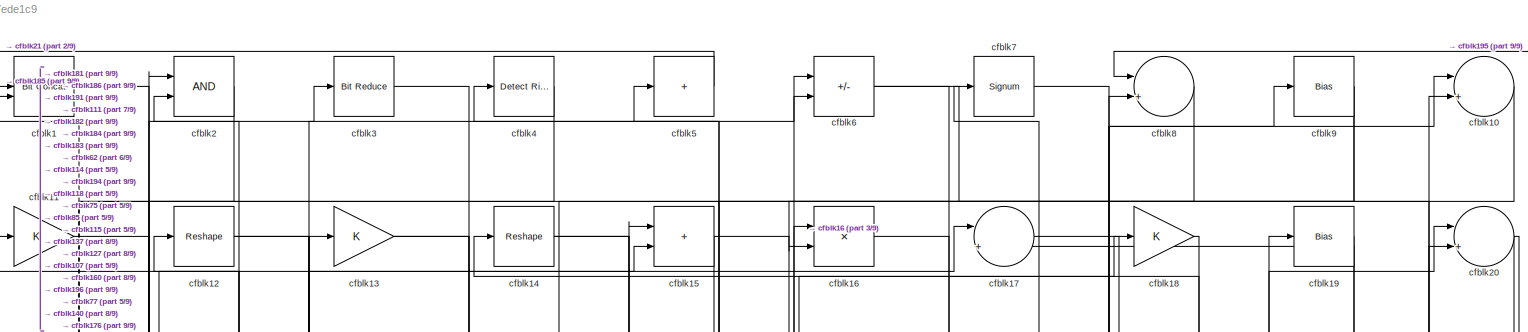
[diagram: root canvas - part 1/9, full width, top band]
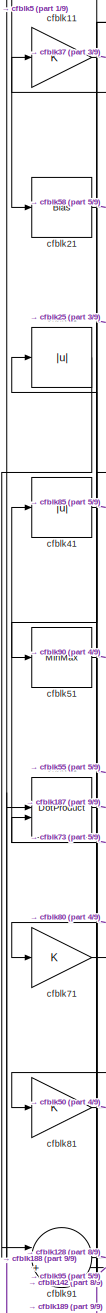
[diagram: root canvas - part 2/9, top left region]
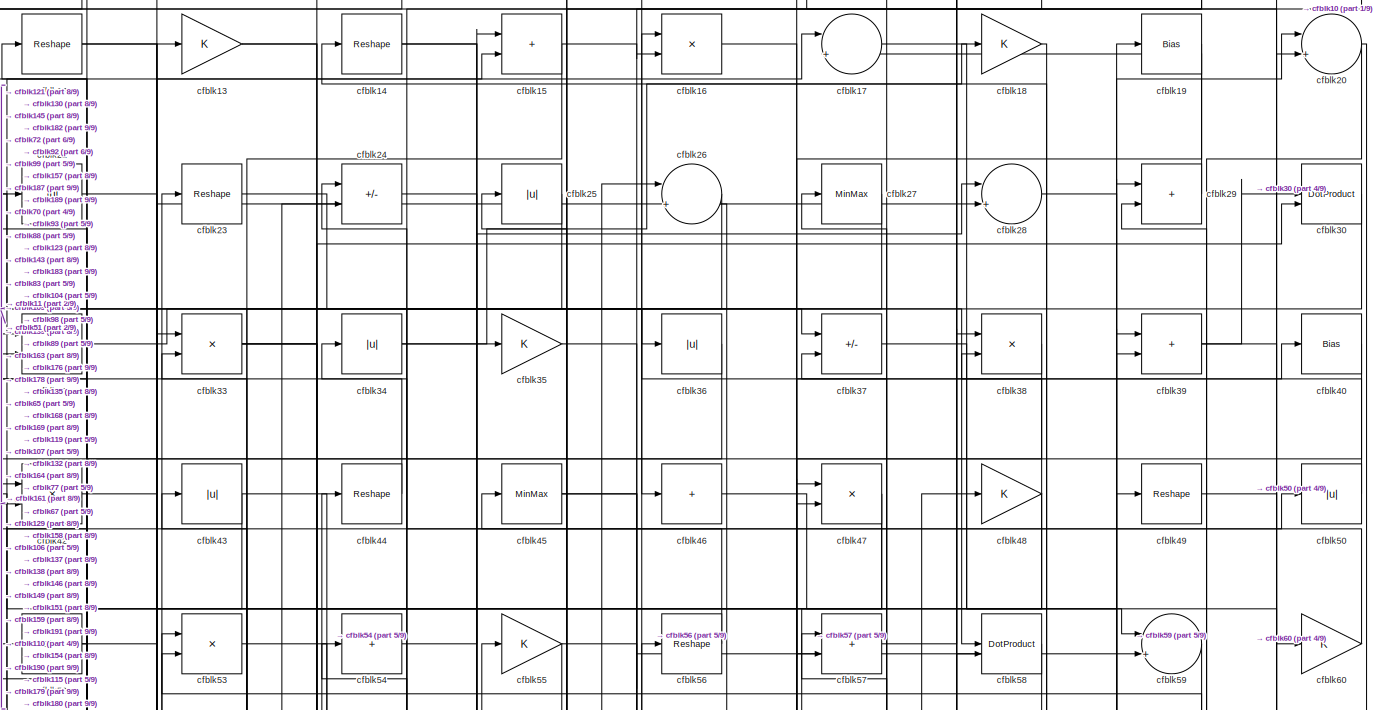
[diagram: root canvas - part 3/9, full width, top band]
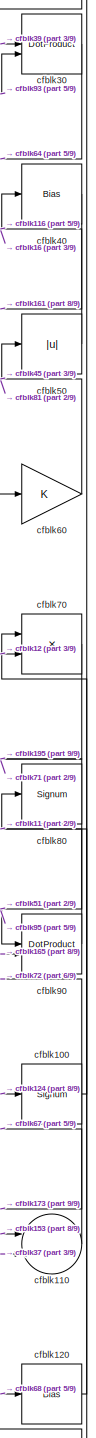
[diagram: root canvas - part 4/9, middle right region]
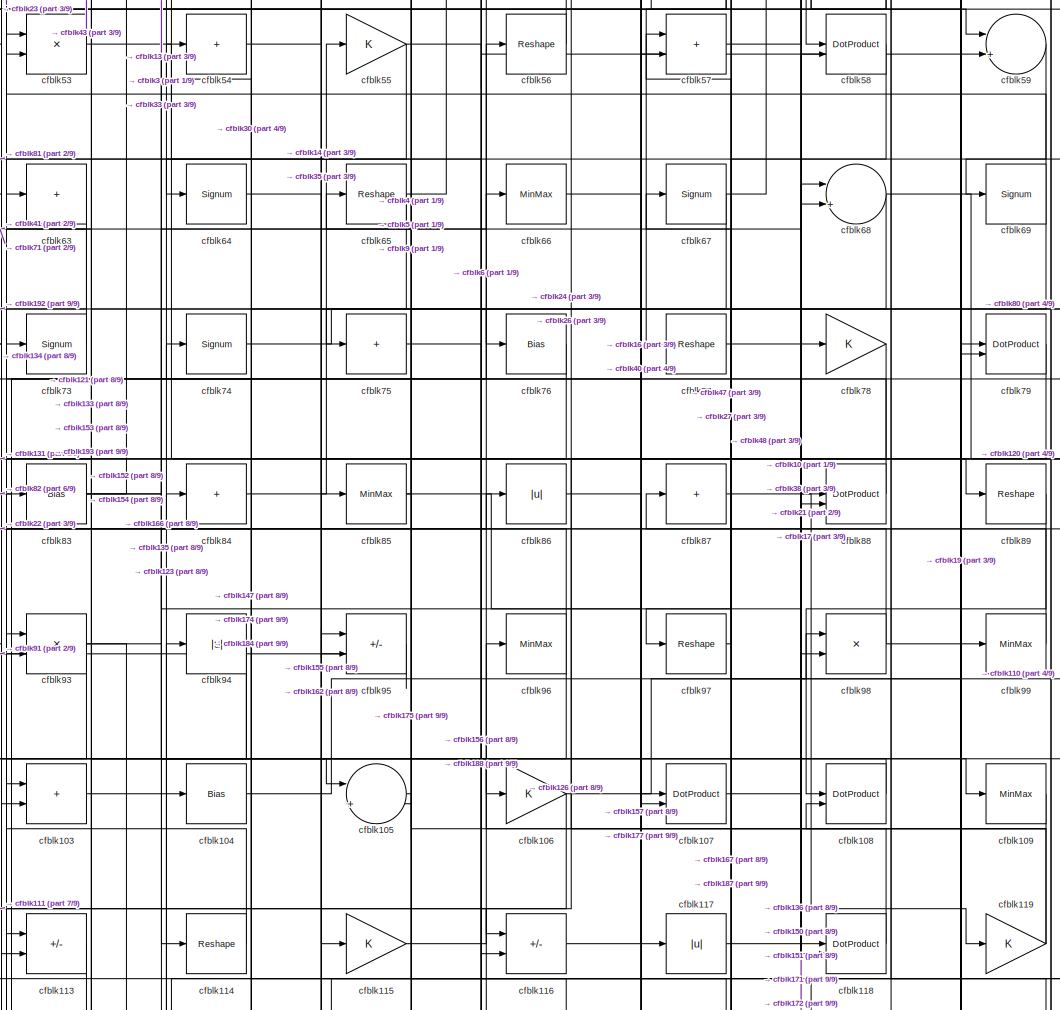
[diagram: root canvas - part 5/9, central region]
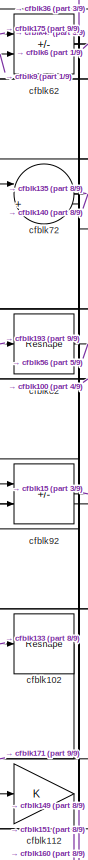
[diagram: root canvas - part 6/9, middle left region]
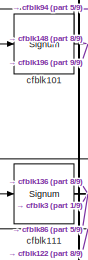
[diagram: root canvas - part 7/9, middle left region]
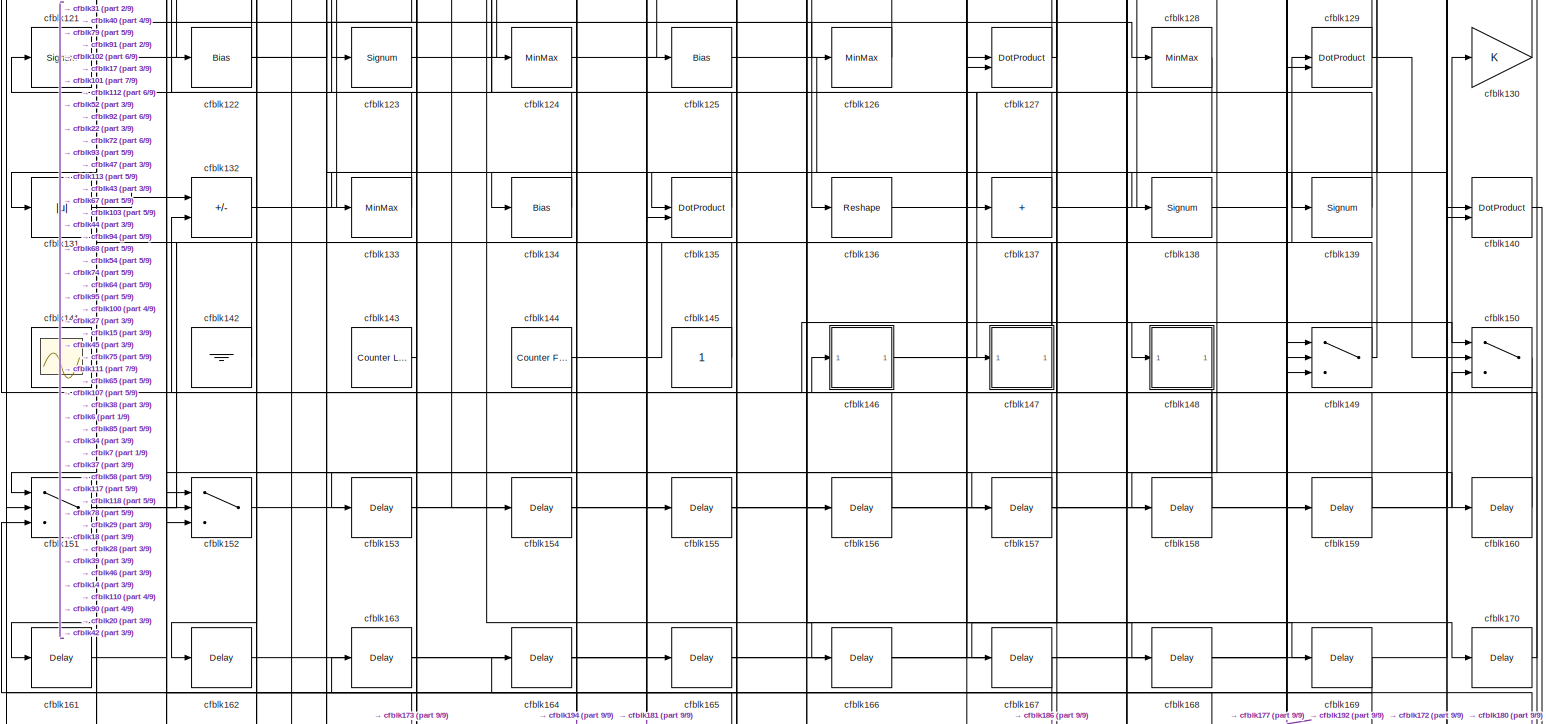
[diagram: root canvas - part 8/9, full width, bottom band]
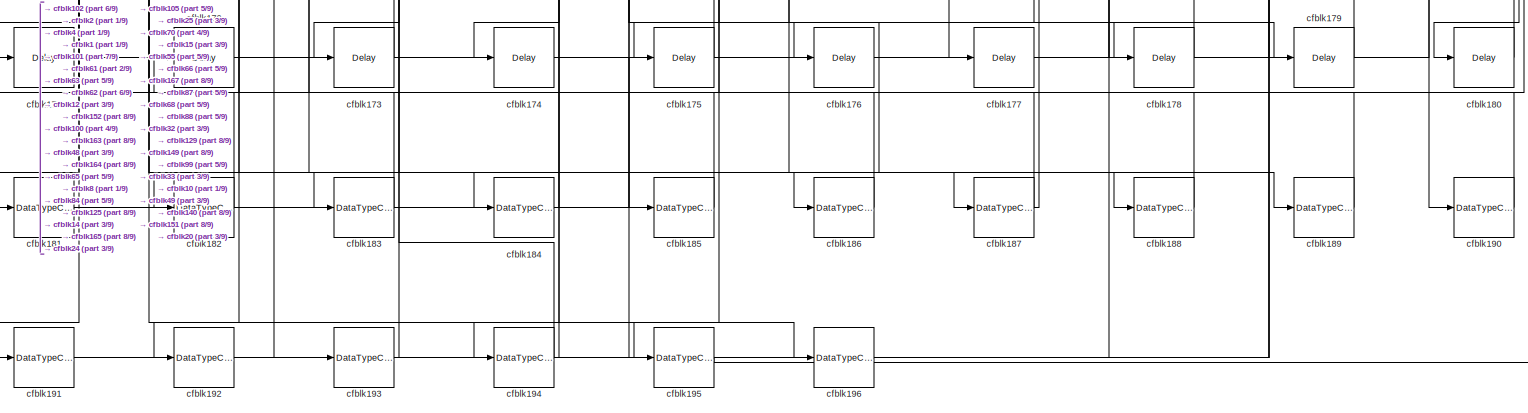
[diagram: root canvas - part 9/9, full width, bottom band]
MODEL slx_2dbc07ede1c9
KIND model
CONFIG AbsTol = auto
CONFIG EnableMultiTasking = off
CONFIG FixedStep = auto
CONFIG MaxStep = auto
CONFIG MinStep = auto
CONFIG RelTol = 1e-3
CONFIG SampleTimeConstraint = Unconstrained
CONFIG SolverName = VariableStepAuto
CONFIG StartTime = 0.0
CONFIG StopTime = 10.0
BLOCK [Reference] cfblk1  REF=hdlsllib/Logic and Bit
Operations/Bit Concat
  SourceBlock = hdlsllib/Logic and Bit\nOperations/Bit Concat
  SourceType = Bit Concat
BLOCK [Sum] cfblk10
  Inputs = |++
BLOCK [Signum] cfblk100
BLOCK [Signum] cfblk101
BLOCK [Reshape] cfblk102
BLOCK [Sum] cfblk103
  IconShape = rectangular
BLOCK [Bias] cfblk104
  Bias = 0.0
  SaturateOnIntegerOverflow = off
BLOCK [Sum] cfblk105
  Inputs = |++
BLOCK [Gain] cfblk106
BLOCK [DotProduct] cfblk107
  OutDataTypeStr = Inherit: Inherit via internal rule
BLOCK [DotProduct] cfblk108
  OutDataTypeStr = Inherit: Inherit via internal rule
BLOCK [MinMax] cfblk109
BLOCK [Gain] cfblk11
BLOCK [Sum] cfblk110
  Inputs = |++
BLOCK [Signum] cfblk111
BLOCK [Gain] cfblk112
BLOCK [Sum] cfblk113
  IconShape = rectangular
  Inputs = +-
BLOCK [Reshape] cfblk114
BLOCK [Gain] cfblk115
BLOCK [Sum] cfblk116
  IconShape = rectangular
  Inputs = +-
BLOCK [Abs] cfblk117
  SaturateOnIntegerOverflow = off
BLOCK [DotProduct] cfblk118
  OutDataTypeStr = Inherit: Inherit via internal rule
BLOCK [Gain] cfblk119
BLOCK [Reshape] cfblk12
BLOCK [Bias] cfblk120
  Bias = 0.0
  SaturateOnIntegerOverflow = off
BLOCK [Signum] cfblk121
BLOCK [Bias] cfblk122
  Bias = 0.0
  SaturateOnIntegerOverflow = off
BLOCK [Signum] cfblk123
BLOCK [MinMax] cfblk124
BLOCK [Bias] cfblk125
  Bias = 0.0
  SaturateOnIntegerOverflow = off
BLOCK [MinMax] cfblk126
BLOCK [DotProduct] cfblk127
  OutDataTypeStr = Inherit: Inherit via internal rule
BLOCK [MinMax] cfblk128
BLOCK [DotProduct] cfblk129
  OutDataTypeStr = Inherit: Inherit via internal rule
BLOCK [Gain] cfblk13
BLOCK [Gain] cfblk130
BLOCK [Abs] cfblk131
  SaturateOnIntegerOverflow = off
BLOCK [Sum] cfblk132
  IconShape = rectangular
  Inputs = +-
BLOCK [MinMax] cfblk133
BLOCK [Bias] cfblk134
  Bias = 0.0
  SaturateOnIntegerOverflow = off
BLOCK [DotProduct] cfblk135
  OutDataTypeStr = Inherit: Inherit via internal rule
BLOCK [Reshape] cfblk136
BLOCK [Sum] cfblk137
  IconShape = rectangular
  Inputs = +
BLOCK [Signum] cfblk138
BLOCK [Signum] cfblk139
BLOCK [Reshape] cfblk14
BLOCK [DotProduct] cfblk140
  OutDataTypeStr = Inherit: Inherit via internal rule
BLOCK [Scope] cfblk141
  Floating = on
  NumInputPorts = 1
  ScopeSpecificationString = Simulink.scopes.TimeScopeBlockCfg('CurrentConfiguration', extmgr.ConfigurationSet(extmgr.Configuration('Core','General UI',true,'FigureColor',[0.156862745098039 0.156862745098039 0.156862745098039]),extmgr.Configuration('Core','Source UI',true),extmgr.Configuration('Sources','WiredSimulink',true,'DataLoggingVariableName','ScopeData1','DataLoggingSaveFormat','StructureWithTime','DataLoggingLimitDat...<+2713ch>
BLOCK [Ground] cfblk142
BLOCK [Reference] cfblk143  REF=hdlsllib/Sources/Counter
Limited
  SourceBlock = hdlsllib/Sources/Counter\nLimited
  SourceType = Counter Limited
BLOCK [Reference] cfblk144  REF=hdlsllib/Sources/Counter
Free-Running
  SourceBlock = hdlsllib/Sources/Counter\nFree-Running
  SourceType = Counter Free-Running
BLOCK [Constant] cfblk145
  SampleTime = -1
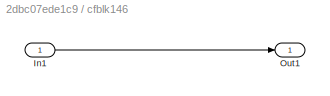
BLOCK [SubSystem] cfblk146
  LibrarySourceBlock = hdlsllib/Ports &\nSubsystems/Subsystem
BLOCK [Inport] cfblk146/In1
BLOCK [Outport] cfblk146/Out1
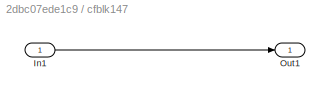
BLOCK [SubSystem] cfblk147
  LibrarySourceBlock = hdlsllib/Ports &\nSubsystems/Subsystem
BLOCK [Inport] cfblk147/In1
BLOCK [Outport] cfblk147/Out1
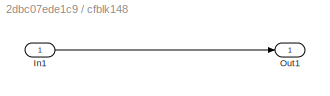
BLOCK [SubSystem] cfblk148
  LibrarySourceBlock = hdlsllib/Ports &\nSubsystems/Subsystem
BLOCK [Inport] cfblk148/In1
BLOCK [Outport] cfblk148/Out1
BLOCK [Switch] cfblk149
  InputSameDT = off
  SaturateOnIntegerOverflow = off
BLOCK [Sum] cfblk15
  IconShape = rectangular
BLOCK [Switch] cfblk150
  InputSameDT = off
  SaturateOnIntegerOverflow = off
BLOCK [Switch] cfblk151
  InputSameDT = off
  SaturateOnIntegerOverflow = off
BLOCK [Switch] cfblk152
  InputSameDT = off
  SaturateOnIntegerOverflow = off
BLOCK [Delay] cfblk153
  InputPortMap = u0
  SampleTime = 1
BLOCK [Delay] cfblk154
  InputPortMap = u0
  SampleTime = 1
BLOCK [Delay] cfblk155
  InputPortMap = u0
  SampleTime = 1
BLOCK [Delay] cfblk156
  InputPortMap = u0
  SampleTime = 1
BLOCK [Delay] cfblk157
  InputPortMap = u0
  SampleTime = 1
BLOCK [Delay] cfblk158
  InputPortMap = u0
  SampleTime = 1
BLOCK [Delay] cfblk159
  InputPortMap = u0
  SampleTime = 1
BLOCK [Product] cfblk16
  Inputs = */
  RndMeth = Zero
  SaturateOnIntegerOverflow = on
BLOCK [Delay] cfblk160
  InputPortMap = u0
  SampleTime = 1
BLOCK [Delay] cfblk161
  InputPortMap = u0
  SampleTime = 1
BLOCK [Delay] cfblk162
  InputPortMap = u0
  SampleTime = 1
BLOCK [Delay] cfblk163
  InputPortMap = u0
  SampleTime = 1
BLOCK [Delay] cfblk164
  InputPortMap = u0
  SampleTime = 1
BLOCK [Delay] cfblk165
  InputPortMap = u0
  SampleTime = 1
BLOCK [Delay] cfblk166
  InputPortMap = u0
  SampleTime = 1
BLOCK [Delay] cfblk167
  InputPortMap = u0
  SampleTime = 1
BLOCK [Delay] cfblk168
  InputPortMap = u0
  SampleTime = 1
BLOCK [Delay] cfblk169
  InputPortMap = u0
  SampleTime = 1
BLOCK [Sum] cfblk17
  Inputs = |++
BLOCK [Delay] cfblk170
  InputPortMap = u0
  SampleTime = 1
BLOCK [Delay] cfblk171
  InputPortMap = u0
  SampleTime = 1
BLOCK [Delay] cfblk172
  InputPortMap = u0
  SampleTime = 1
BLOCK [Delay] cfblk173
  InputPortMap = u0
  SampleTime = 1
BLOCK [Delay] cfblk174
  InputPortMap = u0
  SampleTime = 1
BLOCK [Delay] cfblk175
  InputPortMap = u0
  SampleTime = 1
BLOCK [Delay] cfblk176
  InputPortMap = u0
  SampleTime = 1
BLOCK [Delay] cfblk177
  InputPortMap = u0
  SampleTime = 1
BLOCK [Delay] cfblk178
  InputPortMap = u0
  SampleTime = 1
BLOCK [Delay] cfblk179
  InputPortMap = u0
  SampleTime = 1
BLOCK [Gain] cfblk18
BLOCK [Delay] cfblk180
  InputPortMap = u0
  SampleTime = 1
BLOCK [DataTypeConversion] cfblk181
  OutDataTypeStr = uint8
  RndMeth = Floor
  SaturateOnIntegerOverflow = off
BLOCK [DataTypeConversion] cfblk182
  OutDataTypeStr = uint8
  RndMeth = Floor
  SaturateOnIntegerOverflow = off
BLOCK [DataTypeConversion] cfblk183
  OutDataTypeStr = uint8
  RndMeth = Floor
  SaturateOnIntegerOverflow = off
BLOCK [DataTypeConversion] cfblk184
  OutDataTypeStr = uint8
  RndMeth = Floor
  SaturateOnIntegerOverflow = off
BLOCK [DataTypeConversion] cfblk185
  OutDataTypeStr = uint8
  RndMeth = Floor
  SaturateOnIntegerOverflow = off
BLOCK [DataTypeConversion] cfblk186
  OutDataTypeStr = uint8
  RndMeth = Floor
  SaturateOnIntegerOverflow = off
BLOCK [DataTypeConversion] cfblk187
  RndMeth = Floor
  SaturateOnIntegerOverflow = off
BLOCK [DataTypeConversion] cfblk188
  OutDataTypeStr = uint8
  RndMeth = Floor
  SaturateOnIntegerOverflow = off
BLOCK [DataTypeConversion] cfblk189
  OutDataTypeStr = uint8
  RndMeth = Floor
  SaturateOnIntegerOverflow = off
BLOCK [Bias] cfblk19
  Bias = 0.0
  SaturateOnIntegerOverflow = off
BLOCK [DataTypeConversion] cfblk190
  OutDataTypeStr = uint8
  RndMeth = Floor
  SaturateOnIntegerOverflow = off
BLOCK [DataTypeConversion] cfblk191
  OutDataTypeStr = uint8
  RndMeth = Floor
  SaturateOnIntegerOverflow = off
BLOCK [DataTypeConversion] cfblk192
  RndMeth = Floor
  SaturateOnIntegerOverflow = off
BLOCK [DataTypeConversion] cfblk193
  OutDataTypeStr = uint8
  RndMeth = Floor
  SaturateOnIntegerOverflow = off
BLOCK [DataTypeConversion] cfblk194
  RndMeth = Floor
  SaturateOnIntegerOverflow = off
BLOCK [DataTypeConversion] cfblk195
  OutDataTypeStr = uint8
  RndMeth = Floor
  SaturateOnIntegerOverflow = off
BLOCK [DataTypeConversion] cfblk196
  OutDataTypeStr = uint8
  RndMeth = Floor
  SaturateOnIntegerOverflow = off
BLOCK [Logic] cfblk2
  AllPortsSameDT = off
  OutDataTypeStr = boolean
BLOCK [Sum] cfblk20
  Inputs = |++
BLOCK [Bias] cfblk21
  Bias = 0.0
  SaturateOnIntegerOverflow = off
BLOCK [Abs] cfblk22
  SaturateOnIntegerOverflow = off
BLOCK [Reshape] cfblk23
BLOCK [Sum] cfblk24
  IconShape = rectangular
  Inputs = +-
BLOCK [Abs] cfblk25
  SaturateOnIntegerOverflow = off
BLOCK [Sum] cfblk26
  Inputs = |++
BLOCK [MinMax] cfblk27
BLOCK [Sum] cfblk28
  Inputs = |++
BLOCK [Sum] cfblk29
  IconShape = rectangular
BLOCK [Reference] cfblk3  REF=hdlsllib/Logic and Bit
Operations/Bit Reduce
  SourceBlock = hdlsllib/Logic and Bit\nOperations/Bit Reduce
  SourceType = Bit Reduce
BLOCK [DotProduct] cfblk30
  OutDataTypeStr = Inherit: Inherit via internal rule
BLOCK [Abs] cfblk31
  SaturateOnIntegerOverflow = off
BLOCK [Sum] cfblk32
  IconShape = rectangular
BLOCK [Product] cfblk33
  Inputs = */
  RndMeth = Zero
  SaturateOnIntegerOverflow = on
BLOCK [Abs] cfblk34
  SaturateOnIntegerOverflow = off
BLOCK [Gain] cfblk35
BLOCK [Abs] cfblk36
  SaturateOnIntegerOverflow = off
BLOCK [Sum] cfblk37
  IconShape = rectangular
  Inputs = +-
BLOCK [Product] cfblk38
  Inputs = */
  RndMeth = Zero
  SaturateOnIntegerOverflow = on
BLOCK [Sum] cfblk39
  IconShape = rectangular
BLOCK [Reference] cfblk4  REF=hdlsllib/Logic and Bit
Operations/Detect Rise
Nonnegative
  SourceBlock = hdlsllib/Logic and Bit\nOperations/Detect Rise\nNonnegative
  SourceType = Detect Rise Nonnegative
BLOCK [Bias] cfblk40
  Bias = 0.0
  SaturateOnIntegerOverflow = off
BLOCK [Abs] cfblk41
  SaturateOnIntegerOverflow = off
BLOCK [Product] cfblk42
  Inputs = */
  RndMeth = Zero
  SaturateOnIntegerOverflow = on
BLOCK [Abs] cfblk43
  SaturateOnIntegerOverflow = off
BLOCK [Reshape] cfblk44
BLOCK [MinMax] cfblk45
BLOCK [Sum] cfblk46
  IconShape = rectangular
  Inputs = +
BLOCK [Product] cfblk47
  Inputs = */
  RndMeth = Zero
  SaturateOnIntegerOverflow = on
BLOCK [Gain] cfblk48
BLOCK [Reshape] cfblk49
BLOCK [Sum] cfblk5
  IconShape = rectangular
  Inputs = +
BLOCK [Abs] cfblk50
  SaturateOnIntegerOverflow = off
BLOCK [MinMax] cfblk51
BLOCK [Bias] cfblk52
  Bias = 0.0
  SaturateOnIntegerOverflow = off
BLOCK [Product] cfblk53
  Inputs = */
  RndMeth = Zero
  SaturateOnIntegerOverflow = on
BLOCK [Sum] cfblk54
  IconShape = rectangular
  Inputs = +
BLOCK [Gain] cfblk55
BLOCK [Reshape] cfblk56
BLOCK [Sum] cfblk57
  IconShape = rectangular
BLOCK [DotProduct] cfblk58
  OutDataTypeStr = Inherit: Inherit via internal rule
BLOCK [Sum] cfblk59
  Inputs = |++
BLOCK [Sum] cfblk6
  IconShape = rectangular
  Inputs = +-
BLOCK [Gain] cfblk60
BLOCK [DotProduct] cfblk61
  OutDataTypeStr = Inherit: Inherit via internal rule
BLOCK [Sum] cfblk62
  IconShape = rectangular
  Inputs = +-
BLOCK [Sum] cfblk63
  IconShape = rectangular
  Inputs = +
BLOCK [Signum] cfblk64
BLOCK [Reshape] cfblk65
BLOCK [MinMax] cfblk66
BLOCK [Signum] cfblk67
BLOCK [Sum] cfblk68
  Inputs = |++
BLOCK [Signum] cfblk69
BLOCK [Signum] cfblk7
BLOCK [Product] cfblk70
  Inputs = */
  RndMeth = Zero
  SaturateOnIntegerOverflow = on
BLOCK [Gain] cfblk71
BLOCK [Sum] cfblk72
  Inputs = |++
BLOCK [Signum] cfblk73
BLOCK [Signum] cfblk74
BLOCK [Sum] cfblk75
  IconShape = rectangular
  Inputs = +
BLOCK [Bias] cfblk76
  Bias = 0.0
  SaturateOnIntegerOverflow = off
BLOCK [Reshape] cfblk77
BLOCK [Gain] cfblk78
BLOCK [DotProduct] cfblk79
  OutDataTypeStr = Inherit: Inherit via internal rule
BLOCK [Sum] cfblk8
  Inputs = |++
BLOCK [Signum] cfblk80
BLOCK [Gain] cfblk81
BLOCK [Reshape] cfblk82
BLOCK [Bias] cfblk83
  Bias = 0.0
  SaturateOnIntegerOverflow = off
BLOCK [Sum] cfblk84
  IconShape = rectangular
  Inputs = +
BLOCK [MinMax] cfblk85
BLOCK [Abs] cfblk86
  SaturateOnIntegerOverflow = off
BLOCK [Sum] cfblk87
  IconShape = rectangular
  Inputs = +
BLOCK [DotProduct] cfblk88
  OutDataTypeStr = Inherit: Inherit via internal rule
BLOCK [Reshape] cfblk89
BLOCK [Bias] cfblk9
  Bias = 0.0
  SaturateOnIntegerOverflow = off
BLOCK [DotProduct] cfblk90
  OutDataTypeStr = Inherit: Inherit via internal rule
BLOCK [Sum] cfblk91
  Inputs = |++
BLOCK [Sum] cfblk92
  IconShape = rectangular
  Inputs = +-
BLOCK [Product] cfblk93
  Inputs = */
  RndMeth = Zero
  SaturateOnIntegerOverflow = on
BLOCK [Abs] cfblk94
  SaturateOnIntegerOverflow = off
BLOCK [Sum] cfblk95
  IconShape = rectangular
  Inputs = +-
BLOCK [MinMax] cfblk96
BLOCK [Reshape] cfblk97
BLOCK [Product] cfblk98
  Inputs = */
  RndMeth = Zero
  SaturateOnIntegerOverflow = on
BLOCK [MinMax] cfblk99
NET cfblk100:1 -> cfblk173:1, cfblk70:1, cfblk72:1
NET cfblk101:1 -> cfblk148:1, cfblk196:1
LINE cfblk102:1 -> cfblk171:1
LINE cfblk103:1 -> cfblk166:1
LINE cfblk104:1 -> cfblk98:1
LINE cfblk105:1 -> cfblk175:1
NET cfblk106:1 -> cfblk113:1, cfblk19:1
LINE cfblk107:1 -> cfblk10:1
LINE cfblk108:1 -> cfblk103:1
LINE cfblk109:1 -> cfblk108:2
LINE cfblk10:1 -> cfblk16:2
LINE cfblk110:1 -> cfblk67:1
NET cfblk111:1 -> cfblk136:1, cfblk3:1, cfblk86:1
LINE cfblk112:1 -> cfblk151:1
LINE cfblk113:1 -> cfblk121:1
LINE cfblk114:1 -> cfblk73:1
LINE cfblk115:1 -> cfblk6:1
LINE cfblk116:1 -> cfblk40:1
LINE cfblk117:1 -> cfblk150:1
LINE cfblk118:1 -> cfblk4:1
NET cfblk119:1 -> cfblk26:2, cfblk96:1
LINE cfblk11:1 -> cfblk37:1
LINE cfblk120:1 -> cfblk80:1
LINE cfblk121:1 -> cfblk17:1
NET cfblk122:1 -> cfblk101:1, cfblk124:1, cfblk126:1
LINE cfblk123:1 -> cfblk68:2
LINE cfblk124:1 -> cfblk100:1
LINE cfblk125:1 -> cfblk138:1
LINE cfblk126:1 -> cfblk65:1
NET cfblk127:1 -> cfblk34:1, cfblk7:1
LINE cfblk128:1 -> cfblk134:1
NET cfblk129:1 -> cfblk14:1, cfblk150:2
NET cfblk12:1 -> cfblk189:1, cfblk70:2
LINE cfblk130:1 -> cfblk42:1
LINE cfblk131:1 -> cfblk132:1
LINE cfblk132:1 -> cfblk47:1
LINE cfblk133:1 -> cfblk102:1
LINE cfblk134:1 -> cfblk93:1
LINE cfblk135:1 -> cfblk94:1
LINE cfblk136:1 -> cfblk78:1
NET cfblk137:1 -> cfblk122:1, cfblk29:1
LINE cfblk138:1 -> cfblk20:1
LINE cfblk139:1 -> cfblk44:1
NET cfblk13:1 -> cfblk104:1, cfblk57:2
LINE cfblk140:1 -> cfblk172:1
LINE cfblk142:1 -> cfblk31:1
LINE cfblk143:1 -> cfblk43:1
NET cfblk144:1 -> cfblk129:1, cfblk152:2
LINE cfblk145:1 -> cfblk52:1
LINE cfblk146/In1:1 -> cfblk146/Out1:1
NET cfblk146:1 -> cfblk170:1, cfblk39:1
LINE cfblk147/In1:1 -> cfblk147/Out1:1
NET cfblk147:1 -> cfblk54:1, cfblk74:1
LINE cfblk148/In1:1 -> cfblk148/Out1:1
LINE cfblk148:1 -> cfblk162:1
NET cfblk149:1 -> cfblk112:1, cfblk29:2
NET cfblk14:1 -> cfblk115:1, cfblk178:1
LINE cfblk150:1 -> cfblk146:1
NET cfblk151:1 -> cfblk118:2, cfblk39:2
LINE cfblk152:1 -> cfblk130:1
LINE cfblk153:1 -> cfblk110:1
LINE cfblk154:1 -> cfblk20:2
LINE cfblk155:1 -> cfblk118:1
LINE cfblk156:1 -> cfblk132:2
LINE cfblk157:1 -> cfblk107:1
LINE cfblk158:1 -> cfblk37:2
LINE cfblk159:1 -> cfblk127:1
NET cfblk15:1 -> cfblk123:1, cfblk179:1
LINE cfblk160:1 -> cfblk92:2
LINE cfblk161:1 -> cfblk42:2
LINE cfblk162:1 -> cfblk95:1
LINE cfblk163:1 -> cfblk15:1
LINE cfblk164:1 -> cfblk47:2
LINE cfblk165:1 -> cfblk90:2
LINE cfblk166:1 -> cfblk79:1
LINE cfblk167:1 -> cfblk186:1
LINE cfblk168:1 -> cfblk149:2
LINE cfblk169:1 -> cfblk151:3
LINE cfblk16:1 -> cfblk88:2
LINE cfblk170:1 -> cfblk150:3
LINE cfblk171:1 -> cfblk88:1
LINE cfblk172:1 -> cfblk68:1
LINE cfblk173:1 -> cfblk152:1
LINE cfblk174:1 -> cfblk185:1
LINE cfblk175:1 -> cfblk62:1
LINE cfblk176:1 -> cfblk10:2
LINE cfblk177:1 -> cfblk149:3
LINE cfblk178:1 -> cfblk32:2
LINE cfblk179:1 -> cfblk33:2
LINE cfblk17:1 -> cfblk59:1
LINE cfblk180:1 -> cfblk151:2
LINE cfblk181:1 -> cfblk125:1
LINE cfblk182:1 -> cfblk2:1
LINE cfblk183:1 -> cfblk2:2
LINE cfblk184:1 -> cfblk84:1
LINE cfblk185:1 -> cfblk1:1
LINE cfblk186:1 -> cfblk1:2
NET cfblk187:1 -> cfblk33:1, cfblk87:1
LINE cfblk188:1 -> cfblk61:1
LINE cfblk189:1 -> cfblk61:2
LINE cfblk18:1 -> cfblk158:1
LINE cfblk190:1 -> cfblk25:1
LINE cfblk191:1 -> cfblk49:1
NET cfblk192:1 -> cfblk129:2, cfblk99:1
LINE cfblk193:1 -> cfblk63:1
NET cfblk194:1 -> cfblk163:1, cfblk164:1, cfblk165:1
LINE cfblk195:1 -> cfblk8:1
LINE cfblk196:1 -> cfblk8:2
LINE cfblk19:1 -> cfblk107:2
LINE cfblk1:1 -> cfblk184:1
NET cfblk20:1 -> cfblk139:1, cfblk180:1
LINE cfblk21:1 -> cfblk58:1
LINE cfblk22:1 -> cfblk157:1
LINE cfblk23:1 -> cfblk46:1
LINE cfblk24:1 -> cfblk176:1
LINE cfblk25:1 -> cfblk51:1
LINE cfblk26:1 -> cfblk83:1
LINE cfblk27:1 -> cfblk135:1
LINE cfblk28:1 -> cfblk159:1
LINE cfblk29:1 -> cfblk17:2
LINE cfblk2:1 -> cfblk181:1
LINE cfblk30:1 -> cfblk64:1
LINE cfblk31:1 -> cfblk91:1
LINE cfblk32:1 -> cfblk36:1
NET cfblk33:1 -> cfblk106:1, cfblk109:1, cfblk98:2
NET cfblk34:1 -> cfblk18:1, cfblk28:1
LINE cfblk35:1 -> cfblk59:2
LINE cfblk36:1 -> cfblk92:1
LINE cfblk37:1 -> cfblk110:2
LINE cfblk38:1 -> cfblk127:2
NET cfblk39:1 -> cfblk30:1, cfblk60:1
LINE cfblk3:1 -> cfblk114:1
LINE cfblk40:1 -> cfblk161:1
LINE cfblk41:1 -> cfblk85:1
LINE cfblk42:1 -> cfblk13:1
NET cfblk43:1 -> cfblk89:1, cfblk93:2
LINE cfblk44:1 -> cfblk32:1
NET cfblk45:1 -> cfblk168:1, cfblk169:1
LINE cfblk46:1 -> cfblk149:1
NET cfblk47:1 -> cfblk72:2, cfblk77:1
NET cfblk48:1 -> cfblk182:1, cfblk183:1, cfblk38:2
LINE cfblk49:1 -> cfblk190:1
LINE cfblk4:1 -> cfblk191:1
LINE cfblk50:1 -> cfblk16:1
LINE cfblk51:1 -> cfblk90:1
NET cfblk52:1 -> cfblk12:1, cfblk28:2
LINE cfblk53:1 -> cfblk116:2
LINE cfblk54:1 -> cfblk35:1
NET cfblk55:1 -> cfblk188:1, cfblk81:1
LINE cfblk56:1 -> cfblk24:1
LINE cfblk57:1 -> cfblk38:1
LINE cfblk58:1 -> cfblk167:1
LINE cfblk59:1 -> cfblk69:1
LINE cfblk5:1 -> cfblk21:1
LINE cfblk60:1 -> cfblk45:1
LINE cfblk61:1 -> cfblk187:1
NET cfblk62:1 -> cfblk193:1, cfblk6:2, cfblk82:1
LINE cfblk63:1 -> cfblk192:1
LINE cfblk64:1 -> cfblk155:1
NET cfblk65:1 -> cfblk174:1, cfblk26:1
LINE cfblk66:1 -> cfblk177:1
NET cfblk67:1 -> cfblk153:1, cfblk48:1
NET cfblk68:1 -> cfblk105:2, cfblk120:1
NET cfblk69:1 -> cfblk53:2, cfblk97:1
NET cfblk6:1 -> cfblk137:1, cfblk140:1
LINE cfblk70:1 -> cfblk195:1
LINE cfblk71:1 -> cfblk58:2
NET cfblk72:1 -> cfblk135:2, cfblk140:2
LINE cfblk73:1 -> cfblk41:1
LINE cfblk74:1 -> cfblk76:1
LINE cfblk75:1 -> cfblk156:1
LINE cfblk76:1 -> cfblk103:2
LINE cfblk77:1 -> cfblk9:1
LINE cfblk78:1 -> cfblk116:1
LINE cfblk79:1 -> cfblk131:1
LINE cfblk7:1 -> cfblk160:1
NET cfblk80:1 -> cfblk71:1, cfblk95:2
LINE cfblk81:1 -> cfblk50:1
LINE cfblk82:1 -> cfblk56:1
NET cfblk83:1 -> cfblk105:1, cfblk24:2, cfblk66:1
LINE cfblk84:1 -> cfblk55:1
NET cfblk85:1 -> cfblk147:1, cfblk5:1
LINE cfblk86:1 -> cfblk117:1
LINE cfblk87:1 -> cfblk119:1
LINE cfblk88:1 -> cfblk23:1
LINE cfblk89:1 -> cfblk108:1
LINE cfblk8:1 -> cfblk194:1
LINE cfblk90:1 -> cfblk11:1
LINE cfblk91:1 -> cfblk128:1
LINE cfblk92:1 -> cfblk15:2
NET cfblk93:1 -> cfblk152:3, cfblk154:1, cfblk30:2
NET cfblk94:1 -> cfblk111:1, cfblk133:1
LINE cfblk95:1 -> cfblk91:2
NET cfblk96:1 -> cfblk113:2, cfblk53:1
LINE cfblk97:1 -> cfblk57:1
NET cfblk98:1 -> cfblk27:1, cfblk79:2
LINE cfblk99:1 -> cfblk22:1
NET cfblk9:1 -> cfblk62:2, cfblk75:1
note: NET lines group one-source signal fan-out (src -> all destinations, sorted); 1:1 wires keep LINE
